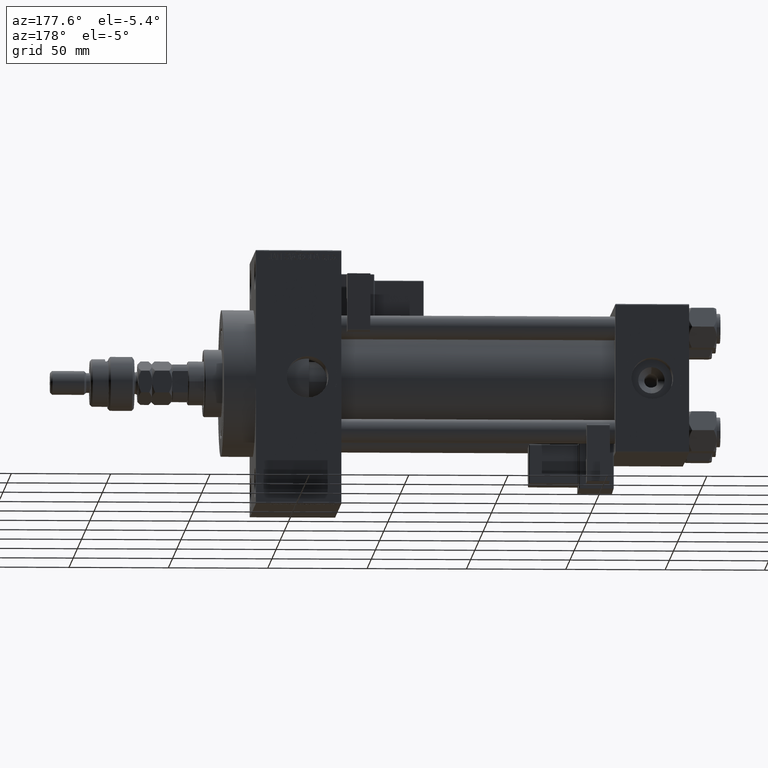
[diagram: clean part render]
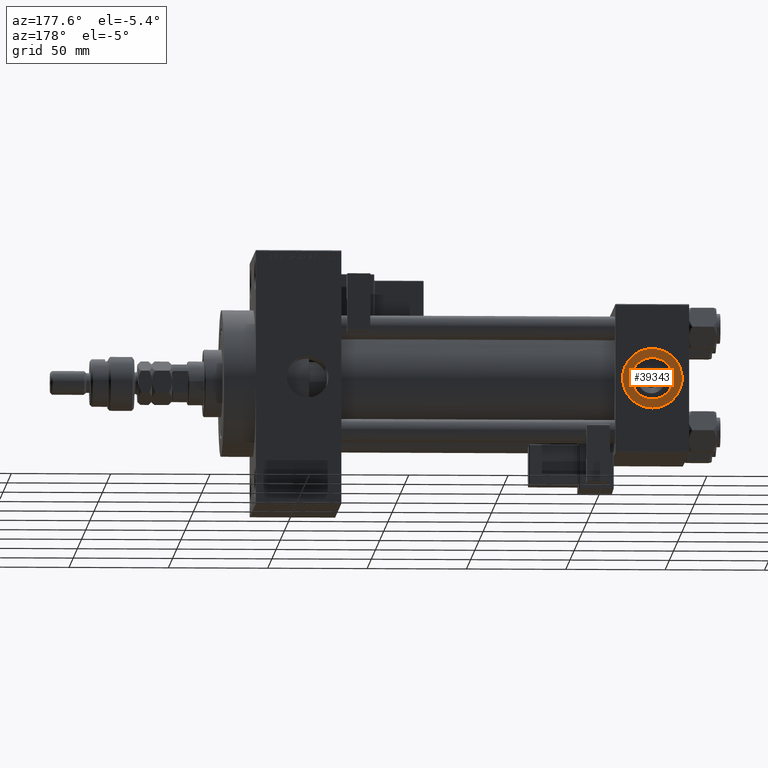
[diagram: same view with one face highlighted and labeled with its STEP entity id]
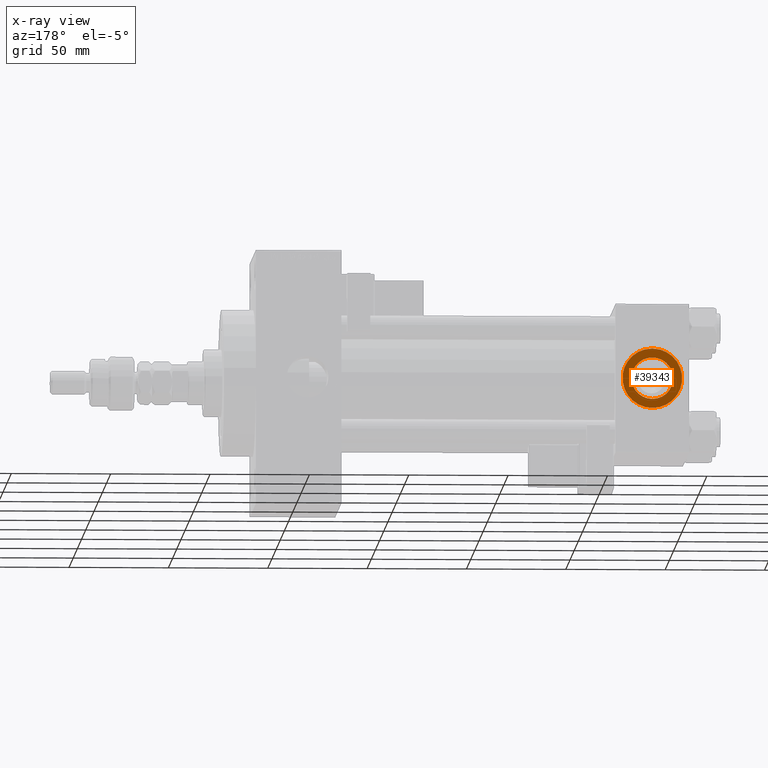
[diagram: x-ray of the same camera — body ghosted, the highlighted face saturated]
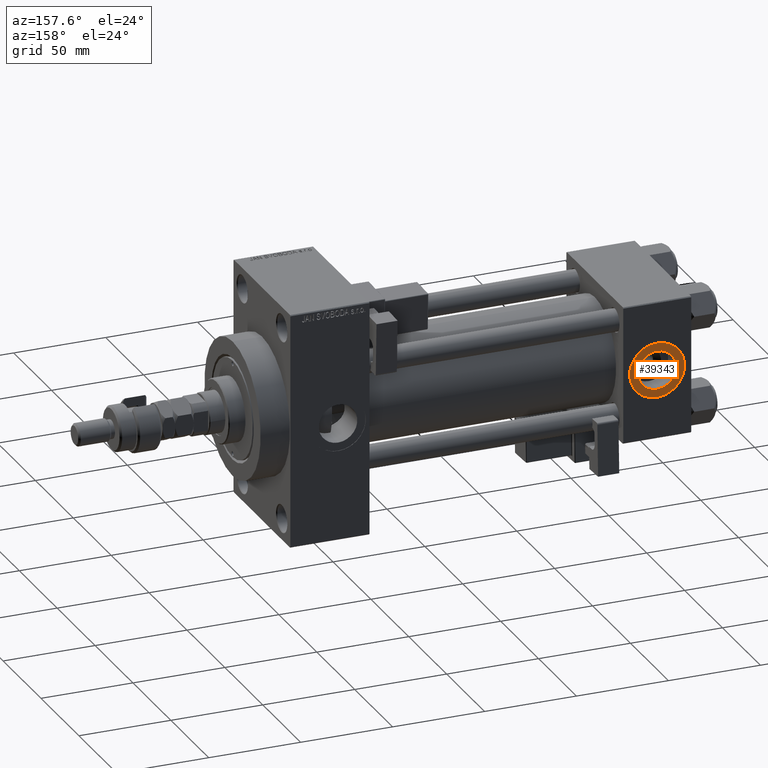
[diagram: same view with one face highlighted and labeled with its STEP entity id]
A machine part, auxiliary view. The second image highlights one B-rep face of the part: STEP entity #39343.
The next image is the same camera in x-ray: the body ghosted, the highlighted face saturated — about 0% of this face is hidden behind the body in this view.
A second angle (auxiliary view) of the same face is appended — the face is thin or edge-on in the first view.
In plain terms, the highlighted planar face has unit normal (0, 1, 0).
Its self-contained STEP definition (entity closure, byte-faithful):
#1112 = AXIS2_PLACEMENT_3D ( 'NONE', #41202, #5644, #41464 ) ;
#3520 = ORIENTED_EDGE ( 'NONE', *, *, #10843, .T. ) ;
#5644 = DIRECTION ( 'NONE',  ( 0.000000000000000000, 1.000000000000000000, 0.000000000000000000 ) ) ;
#6888 = FACE_BOUND ( 'NONE', #40300, .T. ) ;
#7130 = AXIS2_PLACEMENT_3D ( 'NONE', #10388, #47258, #10906 ) ;
#7202 = EDGE_CURVE ( 'NONE', #21803, #17217, #46115, .T. ) ;
#7215 = CARTESIAN_POINT ( 'NONE',  ( 18.50000000000000000, 37.29999999999999005, 15.00000000000000178 ) ) ;
#10388 = CARTESIAN_POINT ( 'NONE',  ( 18.50000000000000000, 37.29999999999999005, 0.000000000000000000 ) ) ;
#10843 = EDGE_CURVE ( 'NONE', #17217, #21803, #52148, .T. ) ;
#10906 = DIRECTION ( 'NONE',  ( 0.000000000000000000, 0.000000000000000000, 1.000000000000000000 ) ) ;
#11068 = AXIS2_PLACEMENT_3D ( 'NONE', #39243, #11655, #23858 ) ;
#11655 = DIRECTION ( 'NONE',  ( 0.000000000000000000, 1.000000000000000000, 0.000000000000000000 ) ) ;
#11759 = ORIENTED_EDGE ( 'NONE', *, *, #7202, .T. ) ;
#15520 = CARTESIAN_POINT ( 'NONE',  ( 18.50000000000000000, 37.29999999999999005, 10.48000000000000043 ) ) ;
#17217 = VERTEX_POINT ( 'NONE', #7215 ) ;
#17297 = CARTESIAN_POINT ( 'NONE',  ( 18.50000000000000355, 37.29999999999999005, -15.00000000000000178 ) ) ;
#18634 = EDGE_CURVE ( 'NONE', #27204, #21428, #40523, .T. ) ;
#19140 = ORIENTED_EDGE ( 'NONE', *, *, #47159, .F. ) ;
#20625 = CARTESIAN_POINT ( 'NONE',  ( 18.50000000000000000, 37.29999999999999005, -10.48000000000000043 ) ) ;
#21428 = VERTEX_POINT ( 'NONE', #20625 ) ;
#21803 = VERTEX_POINT ( 'NONE', #17297 ) ;
#22146 = DIRECTION ( 'NONE',  ( 0.000000000000000000, 0.000000000000000000, 1.000000000000000000 ) ) ;
#23858 = DIRECTION ( 'NONE',  ( 0.000000000000000000, -0.000000000000000000, 1.000000000000000000 ) ) ;
#23972 = CIRCLE ( 'NONE', #1112, 10.48000000000000043 ) ;
#24093 = EDGE_LOOP ( 'NONE', ( #3520, #11759 ) ) ;
#27204 = VERTEX_POINT ( 'NONE', #15520 ) ;
#31507 = DIRECTION ( 'NONE',  ( 0.000000000000000000, 0.000000000000000000, 1.000000000000000000 ) ) ;
#38067 = DIRECTION ( 'NONE',  ( 0.000000000000000000, 1.000000000000000000, 0.000000000000000000 ) ) ;
#39243 = CARTESIAN_POINT ( 'NONE',  ( 18.50000000000000000, 37.29999999999999005, 0.000000000000000000 ) ) ;
#39343 = ADVANCED_FACE ( 'NONE', ( #6888, #52227 ), #48011, .T. ) ;
#39476 = AXIS2_PLACEMENT_3D ( 'NONE', #42575, #38067, #22146 ) ;
#40300 = EDGE_LOOP ( 'NONE', ( #42451, #19140 ) ) ;
#40523 = CIRCLE ( 'NONE', #49030, 10.48000000000000043 ) ;
#41202 = CARTESIAN_POINT ( 'NONE',  ( 18.50000000000000000, 37.29999999999999005, 0.000000000000000000 ) ) ;
#41464 = DIRECTION ( 'NONE',  ( 0.000000000000000000, 0.000000000000000000, 1.000000000000000000 ) ) ;
#42451 = ORIENTED_EDGE ( 'NONE', *, *, #18634, .F. ) ;
#42575 = CARTESIAN_POINT ( 'NONE',  ( 18.50000000000000000, 37.29999999999999005, 0.000000000000000000 ) ) ;
#46115 = CIRCLE ( 'NONE', #7130, 15.00000000000000178 ) ;
#47159 = EDGE_CURVE ( 'NONE', #21428, #27204, #23972, .T. ) ;
#47258 = DIRECTION ( 'NONE',  ( 0.000000000000000000, 1.000000000000000000, 0.000000000000000000 ) ) ;
#47429 = CARTESIAN_POINT ( 'NONE',  ( 18.50000000000000000, 37.29999999999999005, 0.000000000000000000 ) ) ;
#47692 = DIRECTION ( 'NONE',  ( 0.000000000000000000, 1.000000000000000000, 0.000000000000000000 ) ) ;
#48011 = PLANE ( 'NONE',  #11068 ) ;
#49030 = AXIS2_PLACEMENT_3D ( 'NONE', #47429, #47692, #31507 ) ;
#52148 = CIRCLE ( 'NONE', #39476, 15.00000000000000178 ) ;
#52227 = FACE_OUTER_BOUND ( 'NONE', #24093, .T. ) ;